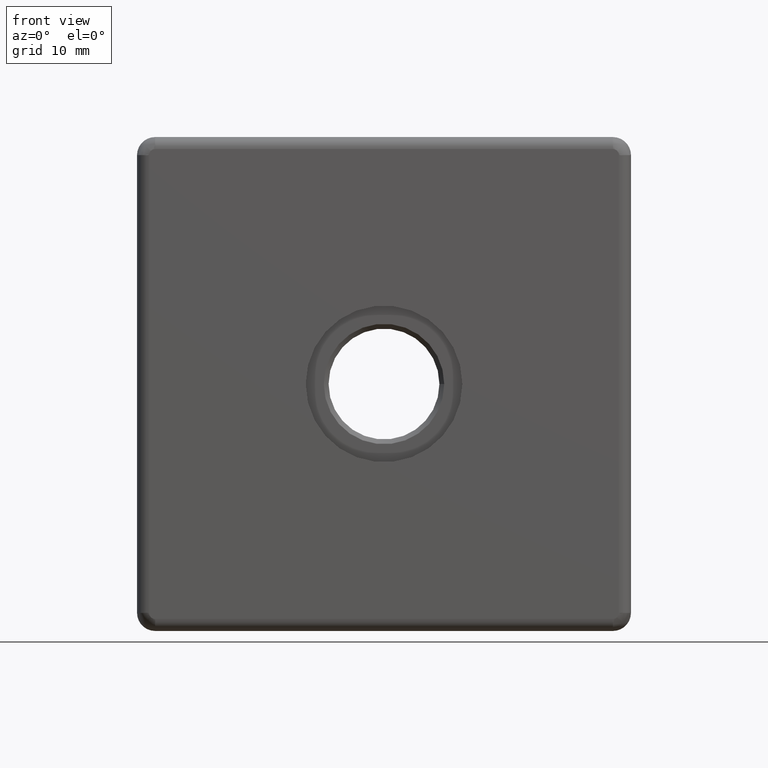
[diagram: clean part render]
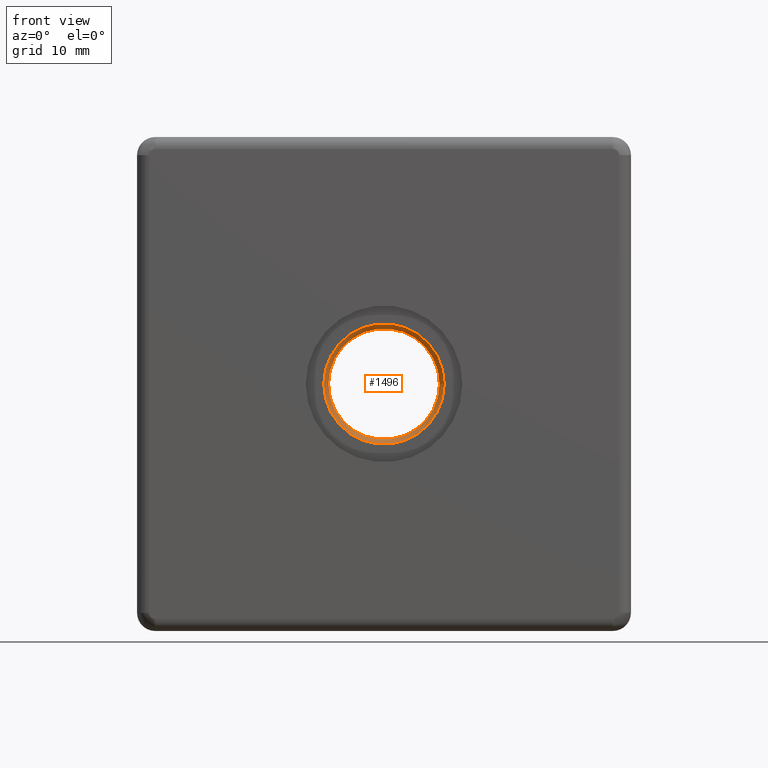
[diagram: same view with one face highlighted and labeled with its STEP entity id]
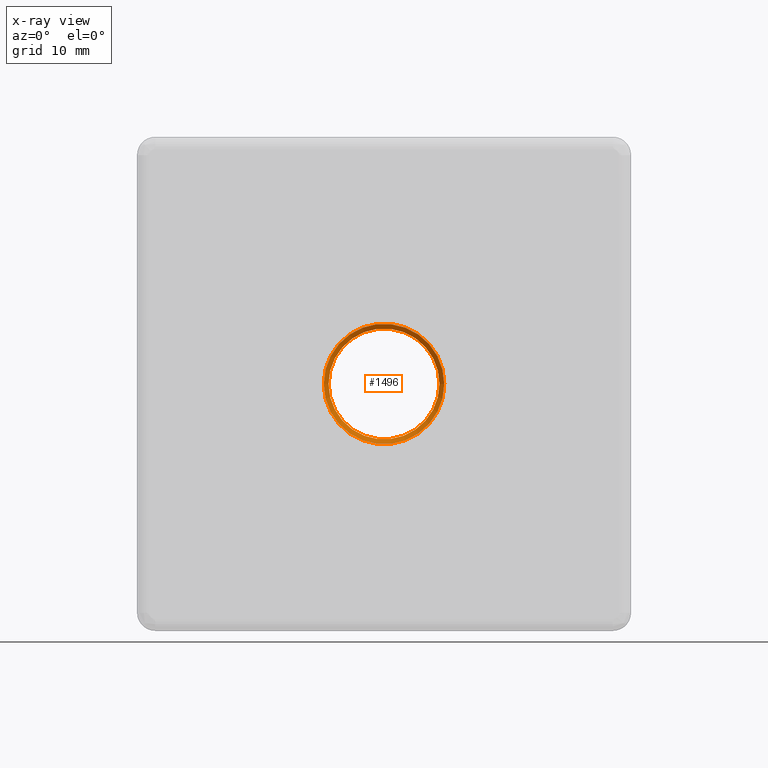
[diagram: x-ray of the same camera — body ghosted, the highlighted face saturated]
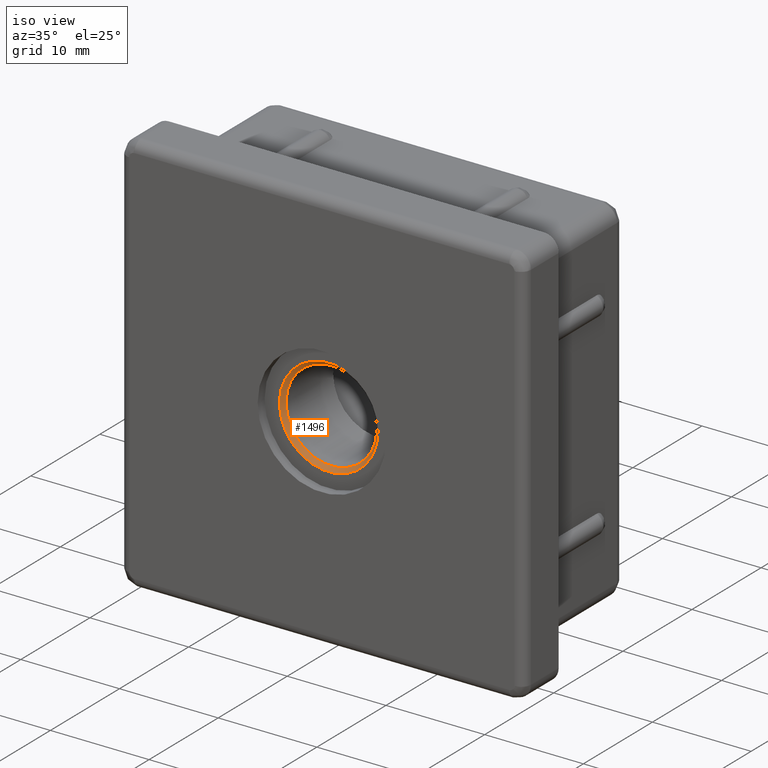
[diagram: same view with one face highlighted and labeled with its STEP entity id]
A machine part, front view. The second image highlights one B-rep face of the part: STEP entity #1496.
The next image is the same camera in x-ray: the body ghosted, the highlighted face saturated — about 0% of this face is hidden behind the body in this view.
A second angle (iso view) of the same face is appended — the face is thin or edge-on in the first view.
In plain terms, the highlighted conical surface has half-angle 45 deg.
Its self-contained STEP definition (entity closure, byte-faithful):
#23=CONICAL_SURFACE('',#1602,4.8,45.);
#26=FACE_BOUND('',#293,.T.);
#98=CIRCLE('',#1603,5.);
#99=CIRCLE('',#1604,4.6);
#207=FACE_OUTER_BOUND('',#292,.T.);
#292=EDGE_LOOP('',(#1191));
#293=EDGE_LOOP('',(#1192));
#735=VERTEX_POINT('',#3162);
#736=VERTEX_POINT('',#3164);
#919=EDGE_CURVE('',#735,#735,#98,.T.);
#920=EDGE_CURVE('',#736,#736,#99,.T.);
#1191=ORIENTED_EDGE('',*,*,#919,.F.);
#1192=ORIENTED_EDGE('',*,*,#920,.F.);
#1496=ADVANCED_FACE('',(#207,#26),#23,.F.);
#1602=AXIS2_PLACEMENT_3D('',#3161,#1882,#1883);
#1603=AXIS2_PLACEMENT_3D('',#3163,#1884,#1885);
#1604=AXIS2_PLACEMENT_3D('',#3165,#1886,#1887);
#1882=DIRECTION('center_axis',(0.,-1.,0.));
#1883=DIRECTION('ref_axis',(1.,0.,0.));
#1884=DIRECTION('center_axis',(0.,1.,0.));
#1885=DIRECTION('ref_axis',(1.,0.,0.));
#1886=DIRECTION('center_axis',(0.,-1.,0.));
#1887=DIRECTION('ref_axis',(1.,0.,0.));
#3161=CARTESIAN_POINT('Origin',(0.,-3.8,0.));
#3162=CARTESIAN_POINT('',(5.,-4.,0.));
#3163=CARTESIAN_POINT('Origin',(0.,-4.,0.));
#3164=CARTESIAN_POINT('',(4.6,-3.6,0.));
#3165=CARTESIAN_POINT('Origin',(0.,-3.60000000000001,0.));